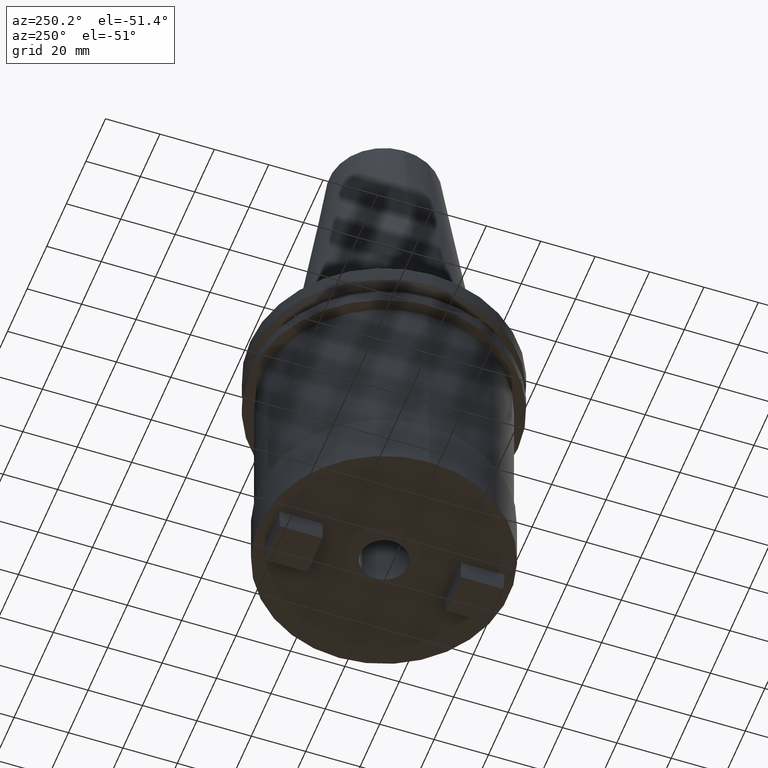
[diagram: clean part render]
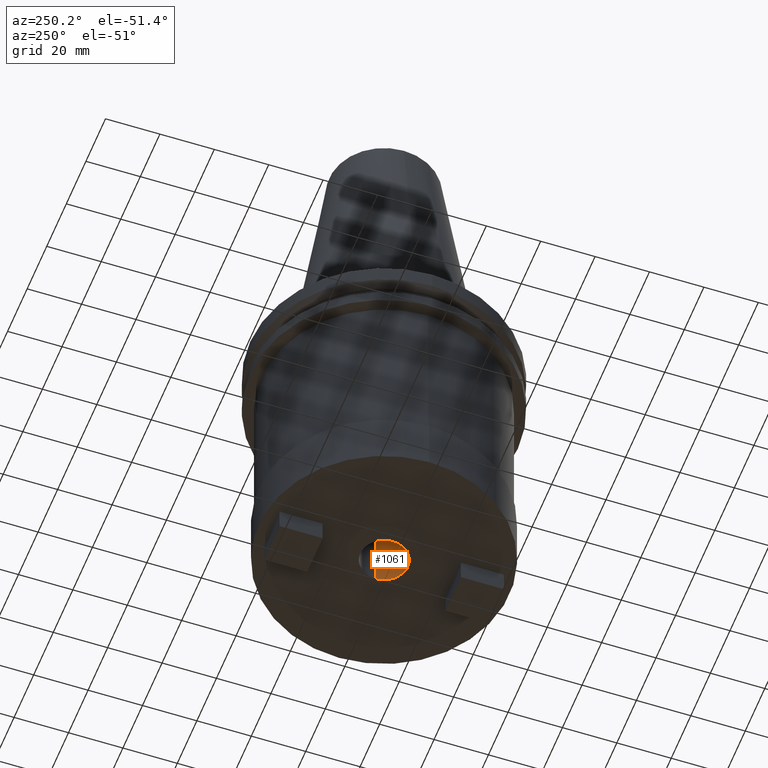
[diagram: same view with one face highlighted and labeled with its STEP entity id]
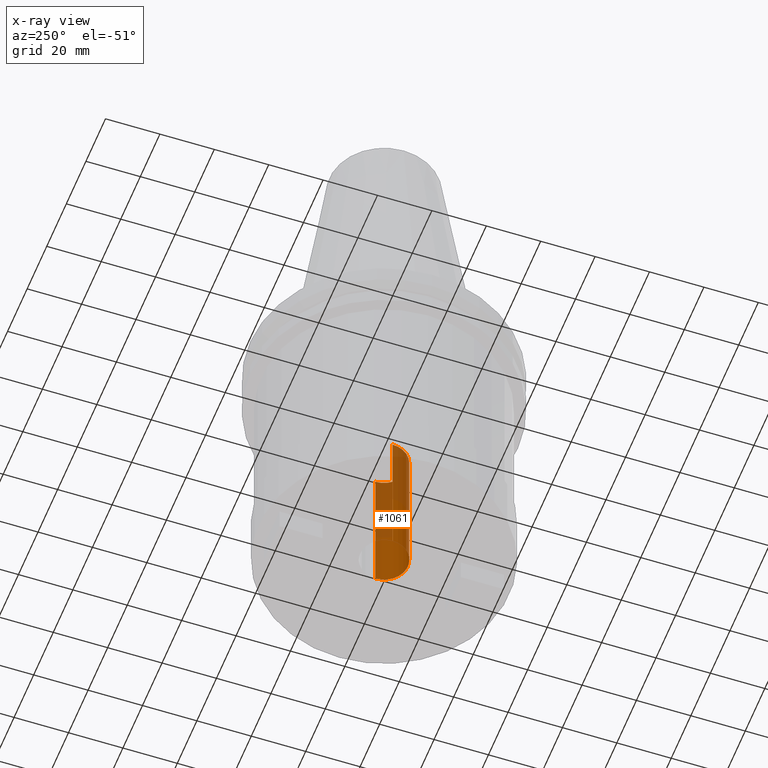
[diagram: x-ray of the same camera — body ghosted, the highlighted face saturated]
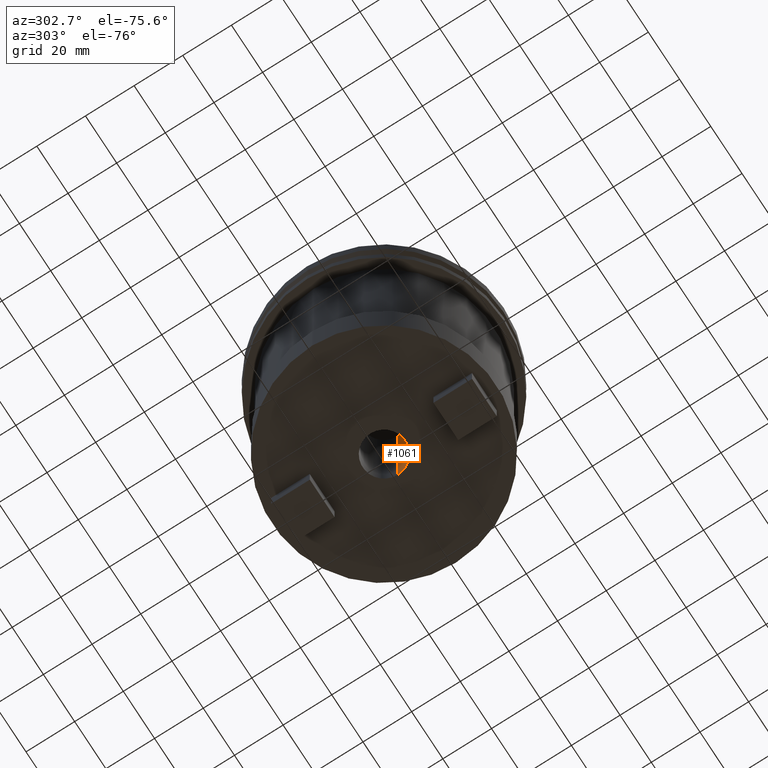
[diagram: same view with one face highlighted and labeled with its STEP entity id]
A machine part, auxiliary view. The second image highlights one B-rep face of the part: STEP entity #1061.
The next image is the same camera in x-ray: the body ghosted, the highlighted face saturated — about 50% of this face is hidden behind the body in this view.
A second angle (auxiliary view) of the same face is appended — the face is thin or edge-on in the first view.
In plain terms, the highlighted cylindrical surface (edge-blend (fillet) strip) has radius 8.75 mm, axis along (-0, -0, 1).
Its self-contained STEP definition (entity closure, byte-faithful):
#38 = LINE ( 'NONE', #701, #234 ) ;
#44 = CARTESIAN_POINT ( 'NONE',  ( 0.000000000000000000, 0.000000000000000000, -47.99999999999998579 ) ) ;
#49 = AXIS2_PLACEMENT_3D ( 'NONE', #971, #1035, #492 ) ;
#187 = CARTESIAN_POINT ( 'NONE',  ( 0.000000000000000000, 0.000000000000000000, 0.000000000000000000 ) ) ;
#228 = VERTEX_POINT ( 'NONE', #776 ) ;
#230 = LINE ( 'NONE', #809, #1046 ) ;
#234 = VECTOR ( 'NONE', #387, 1000.000000000000000 ) ;
#274 = CYLINDRICAL_SURFACE ( 'NONE', #533, 8.750000000000000000 ) ;
#287 = EDGE_CURVE ( 'NONE', #626, #345, #230, .T. ) ;
#292 = CARTESIAN_POINT ( 'NONE',  ( 8.750000000000000000, 0.000000000000000000, -47.99999999999998579 ) ) ;
#312 = DIRECTION ( 'NONE',  ( 1.000000000000000000, 0.000000000000000000, 0.000000000000000000 ) ) ;
#318 = CARTESIAN_POINT ( 'NONE',  ( -8.750000000000000000, 1.071565949253934124E-15, -47.99999999999998579 ) ) ;
#345 = VERTEX_POINT ( 'NONE', #292 ) ;
#356 = CIRCLE ( 'NONE', #49, 8.750000000000003553 ) ;
#368 = EDGE_CURVE ( 'NONE', #228, #626, #356, .T. ) ;
#372 = DIRECTION ( 'NONE',  ( -0.000000000000000000, -0.000000000000000000, 1.000000000000000000 ) ) ;
#375 = CARTESIAN_POINT ( 'NONE',  ( 8.750000000000003553, 0.000000000000000000, -101.5999999999999943 ) ) ;
#387 = DIRECTION ( 'NONE',  ( -0.000000000000000000, -0.000000000000000000, 1.000000000000000000 ) ) ;
#451 = EDGE_LOOP ( 'NONE', ( #485, #1083, #540, #987 ) ) ;
#485 = ORIENTED_EDGE ( 'NONE', *, *, #368, .F. ) ;
#492 = DIRECTION ( 'NONE',  ( 1.000000000000000000, 0.000000000000000000, 0.000000000000000000 ) ) ;
#533 = AXIS2_PLACEMENT_3D ( 'NONE', #187, #372, #782 ) ;
#539 = FACE_OUTER_BOUND ( 'NONE', #451, .T. ) ;
#540 = ORIENTED_EDGE ( 'NONE', *, *, #788, .T. ) ;
#575 = DIRECTION ( 'NONE',  ( -0.000000000000000000, -0.000000000000000000, 1.000000000000000000 ) ) ;
#617 = CIRCLE ( 'NONE', #755, 8.750000000000000000 ) ;
#626 = VERTEX_POINT ( 'NONE', #375 ) ;
#701 = CARTESIAN_POINT ( 'NONE',  ( -8.750000000000000000, 1.071565949253934124E-15, 0.000000000000000000 ) ) ;
#712 = EDGE_CURVE ( 'NONE', #228, #780, #38, .T. ) ;
#737 = DIRECTION ( 'NONE',  ( -0.000000000000000000, -0.000000000000000000, 1.000000000000000000 ) ) ;
#755 = AXIS2_PLACEMENT_3D ( 'NONE', #44, #575, #312 ) ;
#776 = CARTESIAN_POINT ( 'NONE',  ( -8.750000000000003553, 1.071565949253934519E-15, -101.5999999999999943 ) ) ;
#780 = VERTEX_POINT ( 'NONE', #318 ) ;
#782 = DIRECTION ( 'NONE',  ( 1.000000000000000000, 0.000000000000000000, 0.000000000000000000 ) ) ;
#788 = EDGE_CURVE ( 'NONE', #780, #345, #617, .T. ) ;
#809 = CARTESIAN_POINT ( 'NONE',  ( 8.750000000000000000, 0.000000000000000000, 0.000000000000000000 ) ) ;
#971 = CARTESIAN_POINT ( 'NONE',  ( 0.000000000000000000, 0.000000000000000000, -101.5999999999999943 ) ) ;
#987 = ORIENTED_EDGE ( 'NONE', *, *, #287, .F. ) ;
#1035 = DIRECTION ( 'NONE',  ( -0.000000000000000000, -0.000000000000000000, 1.000000000000000000 ) ) ;
#1046 = VECTOR ( 'NONE', #737, 1000.000000000000000 ) ;
#1061 = ADVANCED_FACE ( 'NONE', ( #539 ), #274, .F. ) ;
#1083 = ORIENTED_EDGE ( 'NONE', *, *, #712, .T. ) ;